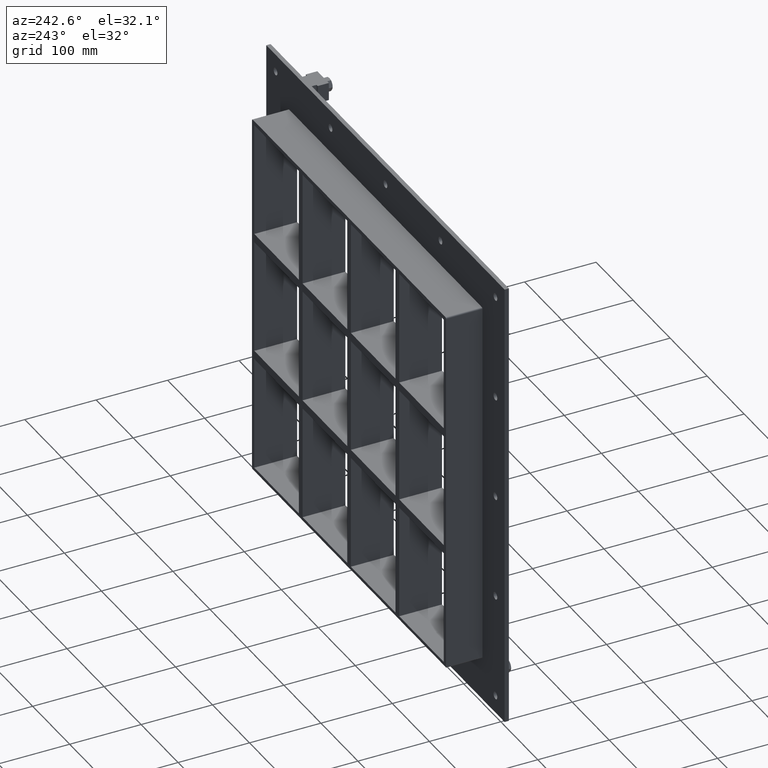
[diagram: clean part render]
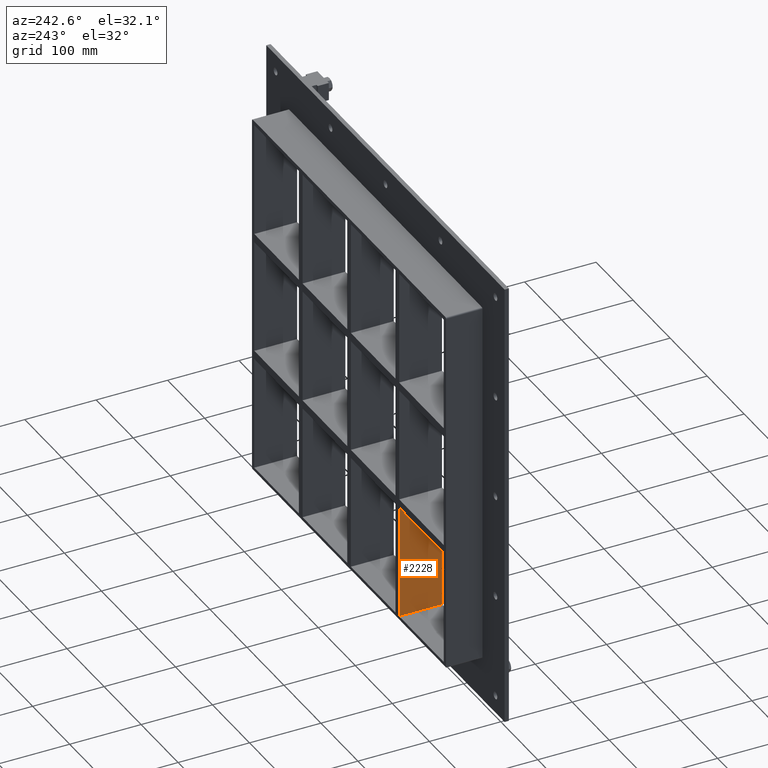
[diagram: same view with one face highlighted and labeled with its STEP entity id]
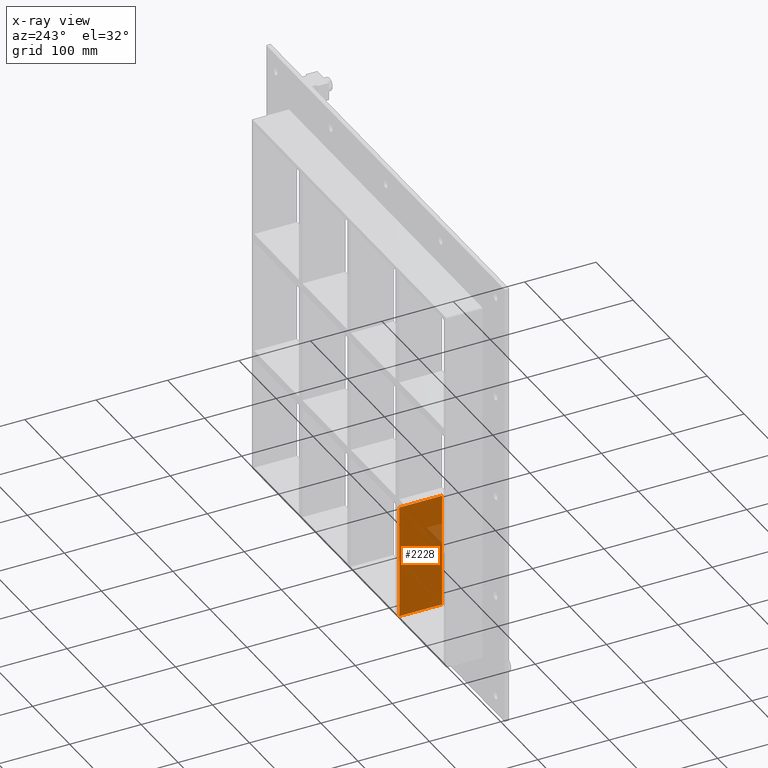
[diagram: x-ray of the same camera — body ghosted, the highlighted face saturated]
A machine part, auxiliary view. The second image highlights one B-rep face of the part: STEP entity #2228.
The next image is the same camera in x-ray: the body ghosted, the highlighted face saturated — about 6% of this face is hidden behind the body in this view.
In plain terms, the highlighted planar face has unit normal (-1, 0, 0).
Its self-contained STEP definition (entity closure, byte-faithful):
#1332=CARTESIAN_POINT('',(-135.50000000000026,57.0,-251.25000000000003));
#1333=VERTEX_POINT('',#1332);
#1340=CARTESIAN_POINT('',(-135.50000000000026,57.0,-91.750000000010914));
#1341=VERTEX_POINT('',#1340);
#1342=CARTESIAN_POINT('',(-135.50000000000026,57.0,-251.25000000000003));
#1343=DIRECTION('',(0.0,0.0,1.0));
#1344=VECTOR('',#1343,159.49999999998911);
#1345=LINE('',#1342,#1344);
#1346=EDGE_CURVE('',#1333,#1341,#1345,.T.);
#1979=CARTESIAN_POINT('',(-135.50000000000026,-3.0,-91.750000000010914));
#1980=VERTEX_POINT('',#1979);
#1989=CARTESIAN_POINT('',(-135.50000000000026,-3.0,-251.25000000000003));
#1990=VERTEX_POINT('',#1989);
#1991=CARTESIAN_POINT('',(-135.50000000000026,-3.0,-251.25000000000003));
#1992=DIRECTION('',(0.0,0.0,1.0));
#1993=VECTOR('',#1992,159.49999999998911);
#1994=LINE('',#1991,#1993);
#1995=EDGE_CURVE('',#1990,#1980,#1994,.T.);
#2130=CARTESIAN_POINT('',(-135.50000000000028,-3.0,-91.750000000010914));
#2131=DIRECTION('',(0.0,1.0,0.0));
#2132=VECTOR('',#2131,60.0);
#2133=LINE('',#2130,#2132);
#2134=EDGE_CURVE('',#1980,#1341,#2133,.T.);
#2212=CARTESIAN_POINT('',(-135.50000000000026,-3.0,-251.25000000000003));
#2213=DIRECTION('',(-1.0,0.0,0.0));
#2214=DIRECTION('',(0.0,0.0,1.0));
#2215=AXIS2_PLACEMENT_3D('',#2212,#2213,#2214);
#2216=PLANE('',#2215);
#2217=ORIENTED_EDGE('',*,*,#2134,.T.);
#2218=ORIENTED_EDGE('',*,*,#1346,.F.);
#2219=CARTESIAN_POINT('',(-135.50000000000026,-3.0,-251.25000000000003));
#2220=DIRECTION('',(0.0,1.0,0.0));
#2221=VECTOR('',#2220,60.000000000000007);
#2222=LINE('',#2219,#2221);
#2223=EDGE_CURVE('',#1990,#1333,#2222,.T.);
#2224=ORIENTED_EDGE('',*,*,#2223,.F.);
#2225=ORIENTED_EDGE('',*,*,#1995,.T.);
#2226=EDGE_LOOP('',(#2217,#2218,#2224,#2225));
#2227=FACE_OUTER_BOUND('',#2226,.T.);
#2228=ADVANCED_FACE('',(#2227),#2216,.T.);